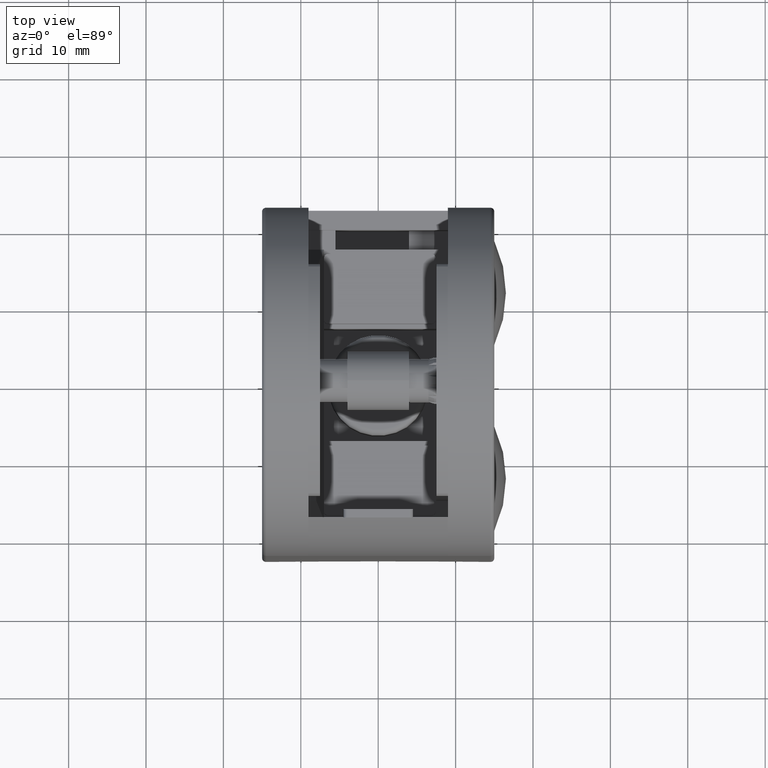
[diagram: clean part render]
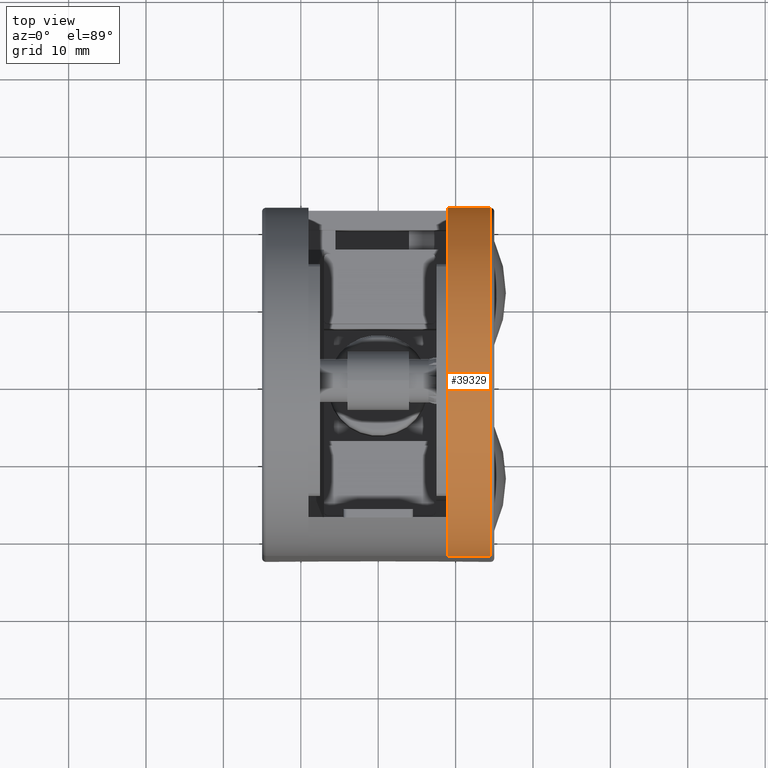
[diagram: same view with one face highlighted and labeled with its STEP entity id]
A machine part, top view. The second image highlights one B-rep face of the part: STEP entity #39329.
In plain terms, the highlighted cylindrical surface (partial cylindrical patch) has radius 22.5 mm, axis along (1, 0, 0).
Its self-contained STEP definition (entity closure, byte-faithful):
#2575 = DIRECTION ( 'NONE',  ( 1.000000000000000000, 0.000000000000000000, 0.000000000000000000 ) ) ;
#3407 = VECTOR ( 'NONE', #80317, 1000.000000000000000 ) ;
#4135 = CARTESIAN_POINT ( 'NONE',  ( 6.000000000000000000, -1.387778780781445676E-14, 40.49999999999999289 ) ) ;
#4146 = ORIENTED_EDGE ( 'NONE', *, *, #44168, .T. ) ;
#5477 = ORIENTED_EDGE ( 'NONE', *, *, #30680, .F. ) ;
#13966 = ORIENTED_EDGE ( 'NONE', *, *, #41756, .T. ) ;
#16912 = DIRECTION ( 'NONE',  ( 0.000000000000000000, 0.000000000000000000, 1.000000000000000000 ) ) ;
#17572 = CIRCLE ( 'NONE', #50830, 22.50000000000000355 ) ;
#20281 = LINE ( 'NONE', #32054, #3407 ) ;
#21405 = CARTESIAN_POINT ( 'NONE',  ( 6.000000000000000000, -1.387778780781445676E-14, 40.49999999999999289 ) ) ;
#25000 = AXIS2_PLACEMENT_3D ( 'NONE', #4135, #48871, #16912 ) ;
#26088 = LINE ( 'NONE', #76604, #52981 ) ;
#30680 = EDGE_CURVE ( 'NONE', #58592, #53017, #17572, .T. ) ;
#32038 = EDGE_LOOP ( 'NONE', ( #4146, #13966, #41855, #5477 ) ) ;
#32054 = CARTESIAN_POINT ( 'NONE',  ( 6.000000000000000000, -22.50000000000001776, 40.50000000000000000 ) ) ;
#35942 = CYLINDRICAL_SURFACE ( 'NONE', #25000, 22.50000000000000711 ) ;
#37223 = CARTESIAN_POINT ( 'NONE',  ( 0.5000000000000004441, 22.50000000000000711, 40.49999999999999289 ) ) ;
#38330 = CARTESIAN_POINT ( 'NONE',  ( 6.000000000000000000, 22.50000000000000711, 40.49999999999999289 ) ) ;
#39329 = ADVANCED_FACE ( 'NONE', ( #72644 ), #35942, .T. ) ;
#41756 = EDGE_CURVE ( 'NONE', #74054, #67227, #47270, .T. ) ;
#41855 = ORIENTED_EDGE ( 'NONE', *, *, #61045, .F. ) ;
#43956 = DIRECTION ( 'NONE',  ( 0.000000000000000000, 0.000000000000000000, -1.000000000000000000 ) ) ;
#44168 = EDGE_CURVE ( 'NONE', #58592, #74054, #26088, .T. ) ;
#44523 = CARTESIAN_POINT ( 'NONE',  ( 0.5000000000000004441, -1.387778780781445676E-14, 40.49999999999999289 ) ) ;
#44538 = DIRECTION ( 'NONE',  ( -1.000000000000000000, -0.000000000000000000, -0.000000000000000000 ) ) ;
#46475 = DIRECTION ( 'NONE',  ( 0.000000000000000000, 0.000000000000000000, -1.000000000000000000 ) ) ;
#47270 = CIRCLE ( 'NONE', #71349, 22.50000000000000355 ) ;
#48871 = DIRECTION ( 'NONE',  ( -1.000000000000000000, -0.000000000000000000, -0.000000000000000000 ) ) ;
#50830 = AXIS2_PLACEMENT_3D ( 'NONE', #21405, #2575, #46475 ) ;
#50898 = DIRECTION ( 'NONE',  ( 1.000000000000000000, 0.000000000000000000, 0.000000000000000000 ) ) ;
#52981 = VECTOR ( 'NONE', #44538, 1000.000000000000000 ) ;
#53017 = VERTEX_POINT ( 'NONE', #75037 ) ;
#58592 = VERTEX_POINT ( 'NONE', #38330 ) ;
#61045 = EDGE_CURVE ( 'NONE', #53017, #67227, #20281, .T. ) ;
#67227 = VERTEX_POINT ( 'NONE', #67303 ) ;
#67303 = CARTESIAN_POINT ( 'NONE',  ( 0.5000000000000004441, -22.50000000000001776, 40.50000000000000000 ) ) ;
#71349 = AXIS2_PLACEMENT_3D ( 'NONE', #44523, #50898, #43956 ) ;
#72644 = FACE_OUTER_BOUND ( 'NONE', #32038, .T. ) ;
#74054 = VERTEX_POINT ( 'NONE', #37223 ) ;
#75037 = CARTESIAN_POINT ( 'NONE',  ( 6.000000000000000000, -22.50000000000001776, 40.50000000000000000 ) ) ;
#76604 = CARTESIAN_POINT ( 'NONE',  ( 6.000000000000000000, 22.50000000000000711, 40.49999999999999289 ) ) ;
#80317 = DIRECTION ( 'NONE',  ( -1.000000000000000000, -0.000000000000000000, -0.000000000000000000 ) ) ;